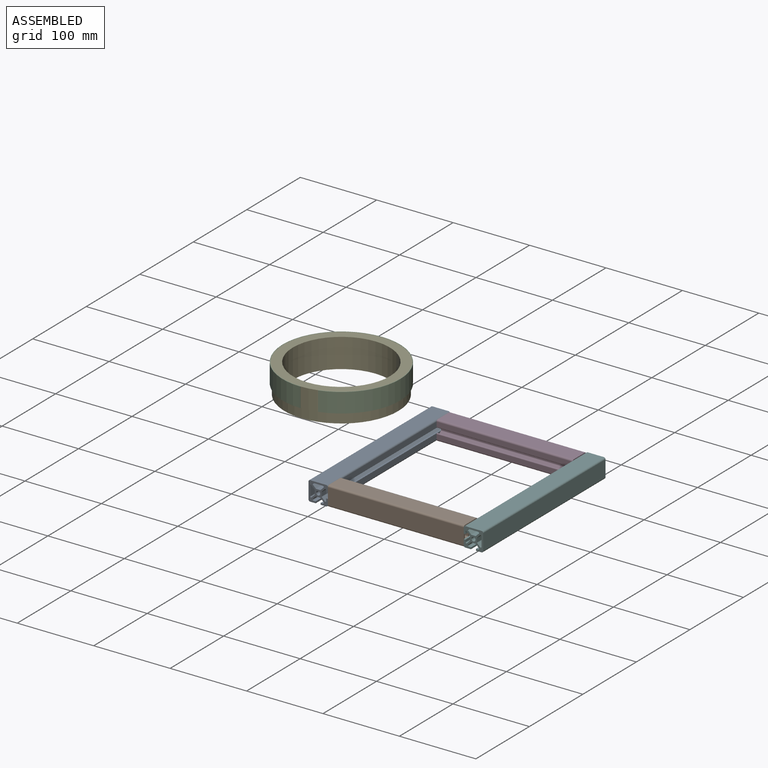
[diagram: assembled view]
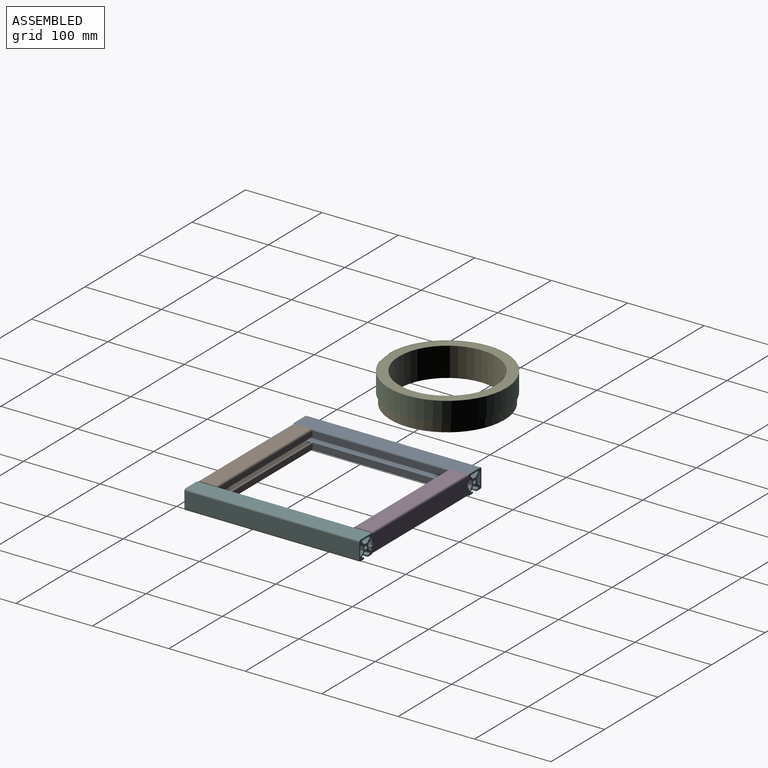
[diagram: assembled view, second angle]
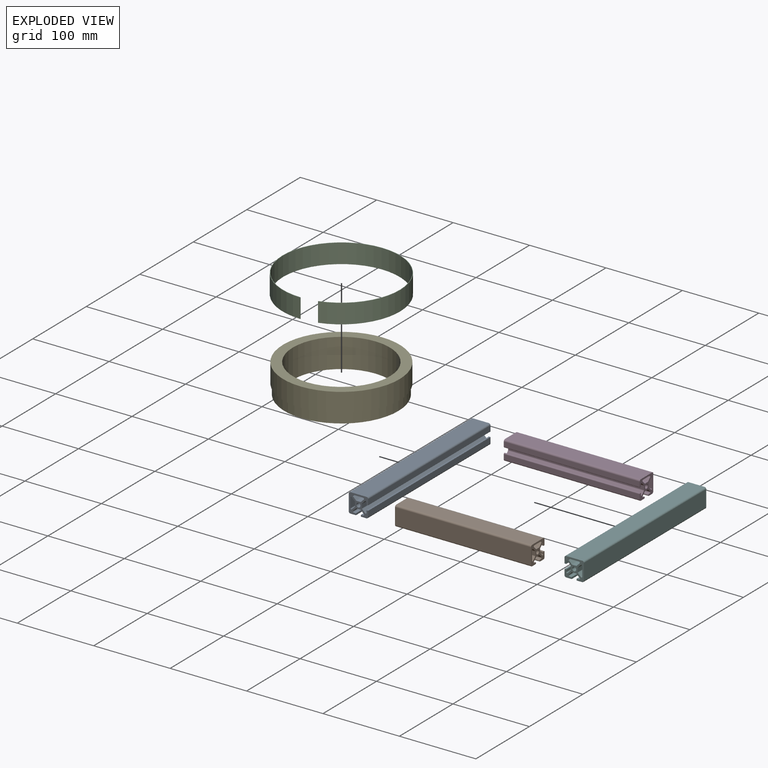
[diagram: exploded view]
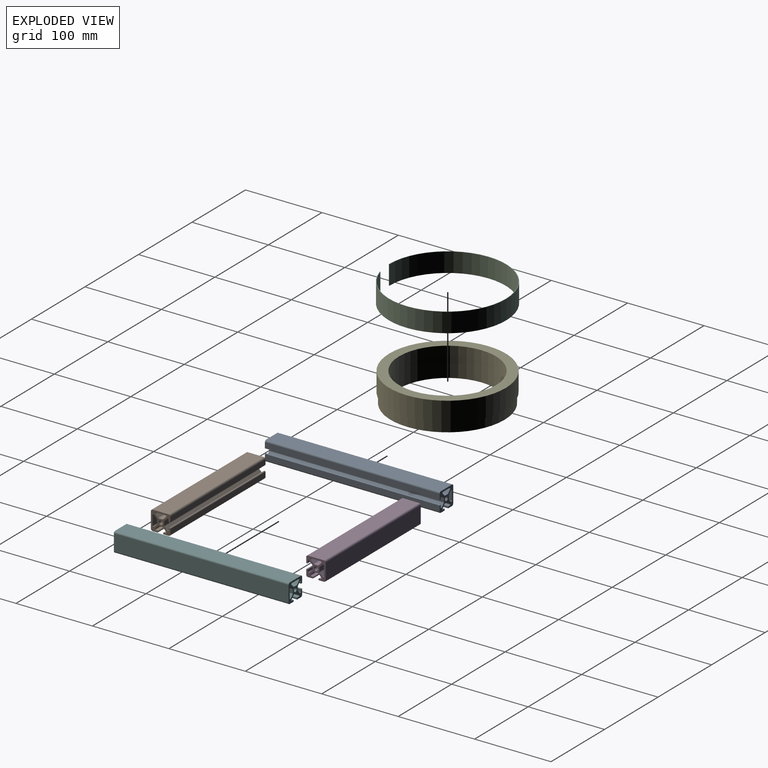
[diagram: exploded view, second angle]
ASSEMBLY  parts=6 mates=5
PART A: 51 faces, bbox 25.4x228.6x25.4 mm
  f0: plane 228.6x2.21mm, normal (1,0,0), area 505.2mm2, adj f1,f48,f49,f50
  f1: plane 228.6x7.24mm, normal (0,0,1), area 1654.8mm2, adj f0,f2,f49,f50
  f2: cylinder r=2.21mm len=228.6mm, axis (0,1,0), area 793.5mm2, adj f1,f3,f49,f50
  f3: plane 228.6x20.98mm, normal (-1,0,0), area 4796.1mm2, adj f2,f4,f49,f50
  f4: cylinder r=2.21mm len=228.6mm, axis (0,1,0), area 793.5mm2, adj f3,f5,f49,f50
  f5: plane 228.6x20.98mm, normal (0,0,-1), area 4796.1mm2, adj f4,f6,f49,f50
  f6: cylinder r=2.21mm len=228.6mm, axis (0,1,0), area 793.5mm2, adj f5,f7,f49,f50
  f7: plane 228.6x7.24mm, normal (1,0,0), area 1654.8mm2, adj f6,f8,f49,f50
  f8: plane 228.6x2.21mm, normal (0,0,1), area 505.2mm2, adj f7,f9,f49,f50
  f9: plane 228.6x3.01mm, normal (-1,0,0), area 687.9mm2, adj f8,f10,f49,f50
  f10: cylinder r=1.1mm len=228.6mm, axis (0,1,0), area 595.1mm2, adj f9,f11,f49,f50
  f11: plane 228.6x3.76mm, normal (0.71,0,0.71), area 1215.3mm2, adj f10,f12,f49,f50
  f12: cylinder r=1.1mm len=228.6mm, axis (0,1,0), area 198.4mm2, adj f11,f13,f49,f50
  f13: plane 228.6x5mm, normal (1,0,0), area 1143.4mm2, adj f12,f14,f49,f50
  f14: cylinder r=1.1mm len=228.6mm, axis (0,1,0), area 198.4mm2, adj f13,f15,f49,f50
  f15: plane 228.6x3.76mm, normal (0.71,0,-0.71), area 1215.3mm2, adj f14,f16,f49,f50
  f16: cylinder r=1.1mm len=228.6mm, axis (0,1,0), area 595.1mm2, adj f15,f17,f49,f50
  f17: plane 228.6x3.01mm, normal (-1,0,0), area 687.9mm2, adj f16,f18,f49,f50
  f18: plane 228.6x2.21mm, normal (0,0,-1), area 505.2mm2, adj f17,f19,f49,f50
  f19: plane 228.6x7.24mm, normal (1,0,0), area 1654.8mm2, adj f18,f20,f49,f50
  f20: cylinder r=2.21mm len=228.6mm, axis (0,1,0), area 793.5mm2, adj f19,f21,f49,f50
  f21: plane 228.6x7.24mm, normal (0,0,1), area 1654.8mm2, adj f20,f22,f49,f50
  f22: plane 228.6x2.21mm, normal (-1,0,0), area 505.2mm2, adj f21,f23,f49,f50
  f23: plane 228.6x3.01mm, normal (0,0,-1), area 687.9mm2, adj f22,f24,f49,f50
  f24: cylinder r=1.1mm len=228.6mm, axis (0,1,0), area 595.1mm2, adj f23,f25,f49,f50
  f25: plane 228.6x3.76mm, normal (-0.71,0,0.71), area 1215.3mm2, adj f24,f26,f49,f50
  f26: cylinder r=1.1mm len=228.6mm, axis (0,1,0), area 198.4mm2, adj f25,f27,f49,f50
  f27: plane 228.6x5mm, normal (0,0,1), area 1143.4mm2, adj f26,f28,f49,f50
  f28: cylinder r=1.1mm len=228.6mm, axis (0,1,0), area 198.4mm2, adj f27,f29,f49,f50
  f29: plane 228.6x3.76mm, normal (0.71,0,0.71), area 1215.3mm2, adj f28,f30,f49,f50
  f30: cylinder r=1.1mm len=228.6mm, axis (0,1,0), area 595.1mm2, adj f29,f48,f49,f50
  f31: plane 228.6x3.76mm, normal (-0.71,0,-0.71), area 1215.3mm2, adj f32,f45,f49,f50
  f32: cylinder r=1.1mm len=228.6mm, axis (0,1,0), area 198.4mm2, adj f31,f33,f49,f50
  f33: plane 228.6x5mm, normal (-1,0,0), area 1143.4mm2, adj f32,f34,f49,f50
  f34: cylinder r=1.1mm len=228.6mm, axis (0,1,0), area 198.4mm2, adj f33,f35,f49,f50
  f35: plane 228.6x3.76mm, normal (-0.71,0,0.71), area 1215.3mm2, adj f34,f36,f49,f50
  f36: cylinder r=1.1mm len=228.6mm, axis (0,1,0), area 595.1mm2, adj f35,f37,f49,f50
  f37: plane 228.6x12.52mm, normal (1,0,0), area 2862.2mm2, adj f36,f45,f49,f50
  f38: plane 228.6x3.76mm, normal (0.71,0,-0.71), area 1215.3mm2, adj f39,f46,f49,f50
  f39: cylinder r=1.1mm len=228.6mm, axis (0,1,0), area 198.4mm2, adj f38,f40,f49,f50
  f40: plane 228.6x5mm, normal (0,0,-1), area 1143.4mm2, adj f39,f41,f49,f50
  f41: cylinder r=1.1mm len=228.6mm, axis (0,1,0), area 198.4mm2, adj f40,f42,f49,f50
  f42: plane 228.6x3.76mm, normal (-0.71,0,-0.71), area 1215.3mm2, adj f41,f43,f49,f50
  f43: cylinder r=1.1mm len=228.6mm, axis (0,1,0), area 595.1mm2, adj f42,f44,f49,f50
  f44: plane 228.6x12.52mm, normal (0,0,1), area 2862.2mm2, adj f43,f46,f49,f50
  f45: cylinder r=1.1mm len=228.6mm, axis (0,1,0), area 595.1mm2, adj f31,f37,f49,f50
  f46: cylinder r=1.1mm len=228.6mm, axis (0,1,0), area 595.1mm2, adj f38,f44,f49,f50
  f47: cylinder r=2.6mm len=228.6mm, axis (0,1,0), area 3739.5mm2, adj f49,f50
  f48: plane 228.6x3.01mm, normal (0,0,-1), area 687.9mm2, adj f0,f30,f49,f50
  f49: plane 25.4x25.4mm, normal (0,-1,0), area 319.4mm2, adj f0,f1,f2,f3,f4,f5,f6,f7
  f50: plane 25.4x25.4mm, normal (0,1,0), area 319.4mm2, adj f0,f1,f2,f3,f4,f5,f6,f7
PART B: 51 faces, bbox 25.4x177.8x25.4 mm
  f0: plane 25.4x25.4mm, normal (0,1,0), area 317.3mm2, adj f1,f2,f4,f5,f6,f7,f8,f9
  f1: plane 177.8x6.13mm, normal (1,0,0), area 1090.6mm2, adj f0,f3,f5,f48
  f2: plane 177.8x6.13mm, normal (0,0,1), area 1090.6mm2, adj f0,f3,f9,f50
  f3: plane 25.4x25.4mm, normal (0,-1,0), area 317.3mm2, adj f1,f2,f4,f5,f6,f7,f8,f9
  f4: plane 177.8x20.98mm, normal (0,0,-1), area 3730.3mm2, adj f0,f3,f5,f12
  f5: cylinder r=2.21mm len=177.8mm, axis (0,1,0), area 617.2mm2, adj f0,f1,f3,f4
  f6: plane 177.8x6.13mm, normal (1,0,0), area 1090.6mm2, adj f0,f3,f7,f47
  f7: cylinder r=2.21mm len=177.8mm, axis (0,1,0), area 617.2mm2, adj f0,f3,f6,f8
  f8: plane 177.8x6.13mm, normal (0,0,1), area 1090.6mm2, adj f0,f3,f7,f49
  f9: cylinder r=2.21mm len=177.8mm, axis (0,1,0), area 617.2mm2, adj f0,f2,f3,f10
  f10: plane 177.8x20.98mm, normal (-1,0,0), area 3730.3mm2, adj f0,f3,f9,f12
  f11: cylinder r=2.6mm len=177.8mm, axis (0,1,0), area 2908.5mm2, adj f0,f3
  f12: cylinder r=2.21mm len=177.8mm, axis (0,1,0), area 617.2mm2, adj f0,f3,f4,f10
  f13: plane 177.8x1.9mm, normal (0,0,-1), area 338.5mm2, adj f0,f3,f21,f49
  f14: plane 177.8x1.9mm, normal (0,0,-1), area 338.5mm2, adj f0,f3,f15,f50
  f15: cylinder r=1.1mm len=177.8mm, axis (0,1,0), area 462.9mm2, adj f0,f3,f14,f16
  f16: plane 177.8x3.76mm, normal (0.71,0,0.71), area 945.2mm2, adj f0,f3,f15,f17
  f17: cylinder r=1.1mm len=177.8mm, axis (0,1,0), area 154.3mm2, adj f0,f3,f16,f18
  f18: plane 177.8x5mm, normal (0,0,1), area 889.3mm2, adj f0,f3,f17,f19
  f19: cylinder r=1.1mm len=177.8mm, axis (0,1,0), area 154.3mm2, adj f0,f3,f18,f20
  f20: plane 177.8x3.76mm, normal (-0.71,0,0.71), area 945.2mm2, adj f0,f3,f19,f21
  f21: cylinder r=1.1mm len=177.8mm, axis (0,1,0), area 462.9mm2, adj f0,f3,f13,f20
  f22: cylinder r=1.1mm len=177.8mm, axis (0,1,0), area 154.3mm2, adj f0,f3,f23,f29
  f23: plane 177.8x3.76mm, normal (0.71,0,-0.71), area 945.2mm2, adj f0,f3,f22,f24
  f24: cylinder r=1.1mm len=177.8mm, axis (0,1,0), area 462.9mm2, adj f0,f3,f23,f25
  f25: plane 177.8x12.52mm, normal (0,0,1), area 2226.1mm2, adj f0,f3,f24,f26
  f26: cylinder r=1.1mm len=177.8mm, axis (0,1,0), area 462.9mm2, adj f0,f3,f25,f27
  f27: plane 177.8x3.76mm, normal (-0.71,0,-0.71), area 945.2mm2, adj f0,f3,f26,f28
  f28: cylinder r=1.1mm len=177.8mm, axis (0,1,0), area 154.3mm2, adj f0,f3,f27,f29
  f29: plane 177.8x5mm, normal (0,0,-1), area 889.3mm2, adj f0,f3,f22,f28
  f30: plane 177.8x1.9mm, normal (-1,0,0), area 338.5mm2, adj f0,f3,f31,f47
  f31: cylinder r=1.1mm len=177.8mm, axis (0,1,0), area 462.9mm2, adj f0,f3,f30,f32
  f32: plane 177.8x3.76mm, normal (0.71,0,-0.71), area 945.2mm2, adj f0,f3,f31,f33
  f33: cylinder r=1.1mm len=177.8mm, axis (0,1,0), area 154.3mm2, adj f0,f3,f32,f34
  f34: plane 177.8x5mm, normal (1,0,0), area 889.3mm2, adj f0,f3,f33,f35
  f35: cylinder r=1.1mm len=177.8mm, axis (0,1,0), area 154.3mm2, adj f0,f3,f34,f36
  f36: plane 177.8x3.76mm, normal (0.71,0,0.71), area 945.2mm2, adj f0,f3,f35,f37
  f37: cylinder r=1.1mm len=177.8mm, axis (0,1,0), area 462.9mm2, adj f0,f3,f36,f38
  f38: plane 177.8x1.9mm, normal (-1,0,0), area 338.5mm2, adj f0,f3,f37,f48
  f39: cylinder r=1.1mm len=177.8mm, axis (0,1,0), area 154.3mm2, adj f0,f3,f40,f46
  f40: plane 177.8x3.76mm, normal (-0.71,0,-0.71), area 945.2mm2, adj f0,f3,f39,f41
  f41: cylinder r=1.1mm len=177.8mm, axis (0,1,0), area 462.9mm2, adj f0,f3,f40,f42
  f42: plane 177.8x12.52mm, normal (1,0,0), area 2226.1mm2, adj f0,f3,f41,f43
  f43: cylinder r=1.1mm len=177.8mm, axis (0,1,0), area 462.9mm2, adj f0,f3,f42,f44
  f44: plane 177.8x3.76mm, normal (-0.71,0,0.71), area 945.2mm2, adj f0,f3,f43,f45
  f45: cylinder r=1.1mm len=177.8mm, axis (0,1,0), area 154.3mm2, adj f0,f3,f44,f46
  f46: plane 177.8x5mm, normal (-1,0,0), area 889.3mm2, adj f0,f3,f39,f45
  f47: cylinder r=1.1mm len=177.8mm, axis (0,1,0), area 617.2mm2, adj f0,f3,f6,f30
  f48: cylinder r=1.1mm len=177.8mm, axis (0,-1,0), area 617.2mm2, adj f0,f1,f3,f38
  f49: cylinder r=1.1mm len=177.8mm, axis (0,1,0), area 617.2mm2, adj f0,f3,f8,f13
  f50: cylinder r=1.1mm len=177.8mm, axis (0,-1,0), area 617.2mm2, adj f0,f2,f3,f14
PART C: 6 faces, bbox 153.7x153.7x25.4 mm
  f0: plane 25.4x0.61mm, normal (-0.96,-0.28,0), area 16.1mm2, adj f1,f3,f4,f5
  f1: cylinder r=76.83mm len=153.67mm, axis (0,0,-1), area 11717.3mm2, adj f0,f2,f4,f5
  f2: plane 25.4x0.64mm, normal (1,0,0), area 16.1mm2, adj f1,f3,f4,f5
  f3: cylinder r=76.2mm len=152.4mm, axis (0,0,-1), area 11620.5mm2, adj f0,f2,f4,f5
  f4: plane 153.67x153.67mm, normal (0,0,1), area 291.7mm2, adj f0,f1,f2,f3
  f5: plane 153.67x153.67mm, normal (0,0,-1), area 291.7mm2, adj f0,f1,f2,f3
PART D: same geometry as B
PART E: 6 faces, bbox 152.4x152.4x38.1 mm
  f0: plane 149.23x149.23mm, normal (0,0,-1), area 4821.6mm2, adj f1,f4
  f1: cylinder r=63.5mm len=127mm, axis (0,0,-1), area 15201.2mm2, adj f0,f3
  f2: cylinder r=76.2mm len=152.4mm, axis (0,0,-1), area 12039.4mm2, adj f3,f5
  f3: plane 152.4x152.4mm, normal (0,0,1), area 5573.8mm2, adj f1,f2
  f4: cylinder r=74.61mm len=149.23mm, axis (0,0,-1), area 6072.9mm2, adj f0,f5
  f5: plane 152.4x152.4mm, normal (0,0,-1), area 752.1mm2, adj f2,f4
PART F: same geometry as A
PLACE A rot(axis=(0,1,0),90deg) t=(-100.9,-50.65,-33.15)mm fixed
PLACE B rot(axis=(-0.58,0.58,0.58),120deg) t=(-88.2,-266.55,-33.15)mm
PLACE C t=(-171.28,-135.36,23.22)mm
PLACE D rot(axis=(0.58,0.58,-0.58),120deg) t=(89.6,-63.35,-33.15)mm
PLACE E t=(-171.28,-135.36,10.4)mm
PLACE F rot(axis=(0,1,0),180deg) t=(102.3,-50.65,-33.15)mm
MATE planar D.f3 <-> A.f1  axis (-1,0,0) through (-88.2,-50.65,-22.66)mm
MATE planar D.f0 <-> F.f7  axis (1,0,0) through (89.6,-50.65,-22.66)mm
MATE revolute E.f1 <-> C.f1  axis (0,0,-1) through (-171.28,-135.36,35.92)mm
MATE fastened B.f0 <-> A.f1  axis (-1,0,0) through (-88.2,-279.25,-22.66)mm
MATE planar B.f3 <-> F.f7  axis (1,0,0) through (89.6,-279.25,-22.66)mm
